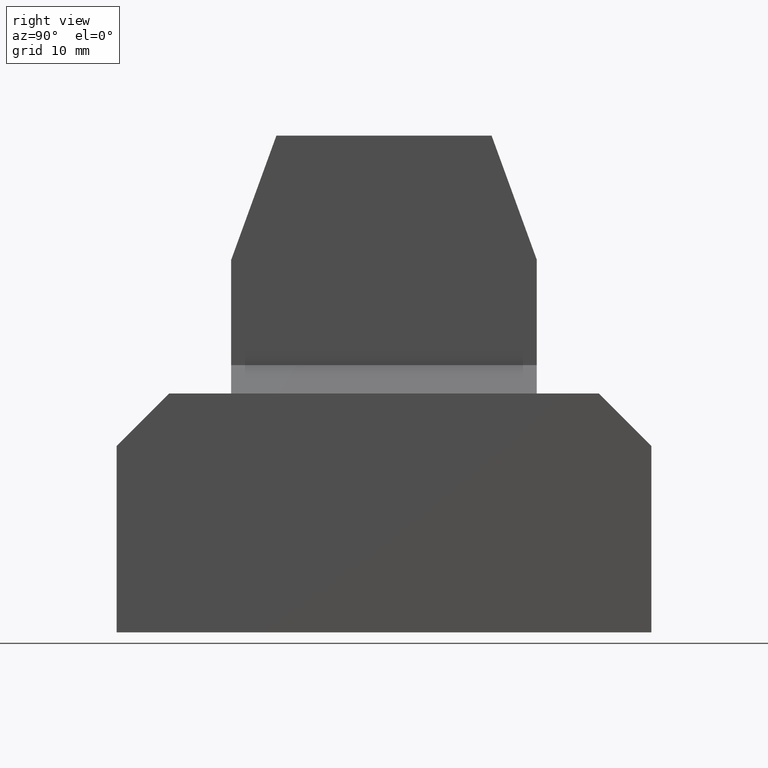
[diagram: clean part render]
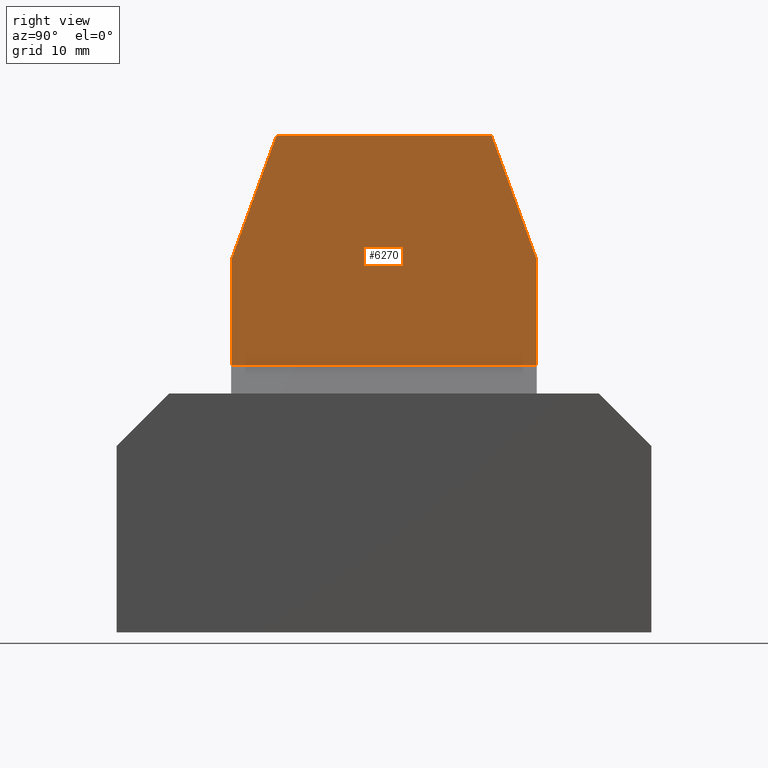
[diagram: same view with one face highlighted and labeled with its STEP entity id]
A machine part, right view. The second image highlights one B-rep face of the part: STEP entity #6270.
In plain terms, the highlighted planar face has unit normal (-1, -0, -0).
Its self-contained STEP definition (entity closure, byte-faithful):
#1210=CARTESIAN_POINT('',(38.6626933469241,34.6157933123737,-2.5));
#1220=VERTEX_POINT('',#1210);
#1250=CARTESIAN_POINT('',(-5.33730665307594,34.6157933123737,-2.5));
#1260=DIRECTION('',(1.,0.,0.));
#1270=VECTOR('',#1260,1.);
#1280=LINE('',#1250,#1270);
#1290=CARTESIAN_POINT('',(6.66269334692405,34.6157933123737,-2.5));
#1300=VERTEX_POINT('',#1290);
#1310=EDGE_CURVE('',#1300,#1220,#1280,.T.);
#1580=CARTESIAN_POINT('',(33.9310803014635,58.6364093308882,-2.5));
#1590=VERTEX_POINT('',#1580);
#1620=CARTESIAN_POINT('',(55.2709350296005,0.00564033088821247,-2.5));
#1630=DIRECTION('',(-0.342020143325662,0.939692620785911,0.));
#1640=VECTOR('',#1630,1.);
#1650=LINE('',#1620,#1640);
#1660=CARTESIAN_POINT('',(38.662693346924,45.6364093308882,-2.5));
#1670=VERTEX_POINT('',#1660);
#1680=EDGE_CURVE('',#1670,#1590,#1650,.T.);
#2430=CARTESIAN_POINT('',(11.3943063923844,58.6364093308882,-2.5));
#2440=VERTEX_POINT('',#2430);
#2470=CARTESIAN_POINT('',(0.00115534692405816,58.6364093308882,-2.5));
#2480=DIRECTION('',(-1.,0.,0.));
#2490=VECTOR('',#2480,1.);
#2500=LINE('',#2470,#2490);
#2510=EDGE_CURVE('',#1590,#2440,#2500,.T.);
#2710=CARTESIAN_POINT('',(38.6626933469241,0.00564033088821247,-2.5));
#2720=DIRECTION('',(0.,1.,0.));
#2730=VECTOR('',#2720,1.);
#2740=LINE('',#2710,#2730);
#2750=EDGE_CURVE('',#1220,#1670,#2740,.T.);
#5140=CARTESIAN_POINT('',(6.66269334692405,0.00564033088821247,-2.5));
#5150=DIRECTION('',(0.,-1.,0.));
#5160=VECTOR('',#5150,1.);
#5170=LINE('',#5140,#5160);
#5180=CARTESIAN_POINT('',(6.66269334692387,45.6364093308883,-2.5));
#5190=VERTEX_POINT('',#5180);
#5200=EDGE_CURVE('',#5190,#1300,#5170,.T.);
#5770=CARTESIAN_POINT('',(-9.94554833575273,0.00564033088821247,-2.5));
#5780=DIRECTION('',(-0.342020143325662,-0.939692620785911,0.));
#5790=VECTOR('',#5780,1.);
#5800=LINE('',#5770,#5790);
#5810=EDGE_CURVE('',#2440,#5190,#5800,.T.);
#6140=CARTESIAN_POINT('',(34.1685887267167,39.2056796250179,-2.5));
#6150=DIRECTION('',(0.,0.,1.));
#6160=DIRECTION('',(1.,0.,0.));
#6170=AXIS2_PLACEMENT_3D('',#6140,#6150,#6160);
#6180=PLANE('',#6170);
#6190=ORIENTED_EDGE('',*,*,#5200,.F.);
#6200=ORIENTED_EDGE('',*,*,#1310,.F.);
#6210=ORIENTED_EDGE('',*,*,#2750,.F.);
#6220=ORIENTED_EDGE('',*,*,#1680,.F.);
#6230=ORIENTED_EDGE('',*,*,#2510,.F.);
#6240=ORIENTED_EDGE('',*,*,#5810,.F.);
#6250=EDGE_LOOP('',(#6240,#6230,#6220,#6210,#6200,#6190));
#6260=FACE_OUTER_BOUND('',#6250,.T.);
#6270=ADVANCED_FACE('',(#6260),#6180,.F.);